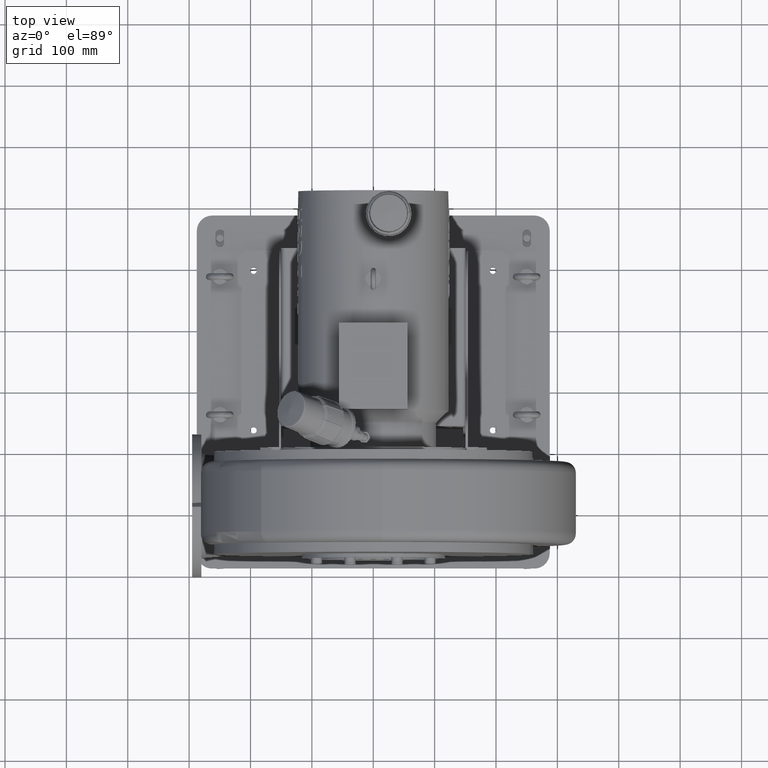
[diagram: clean part render]
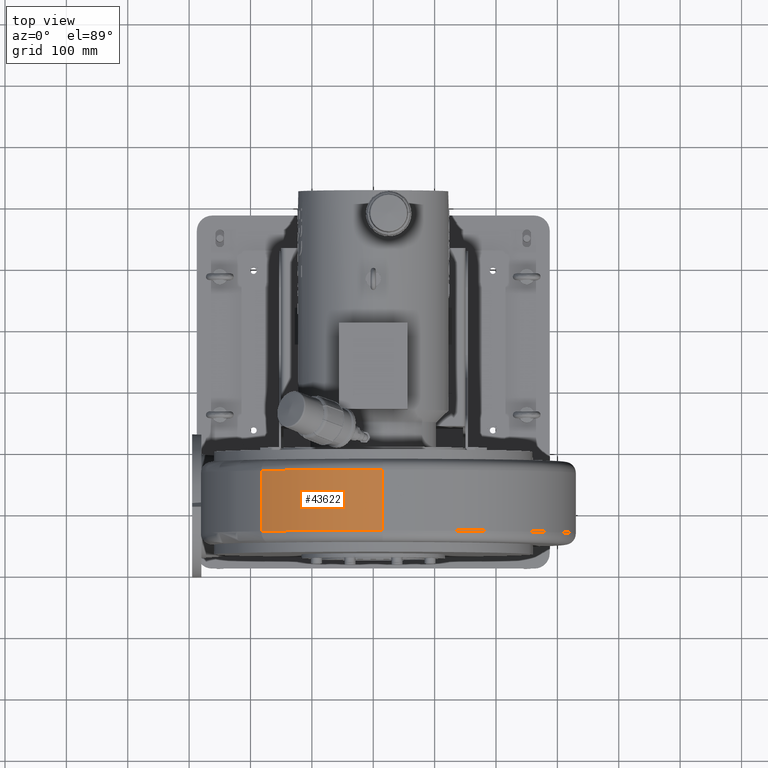
[diagram: same view with one face highlighted and labeled with its STEP entity id]
A machine part, top view. The second image highlights one B-rep face of the part: STEP entity #43622.
In plain terms, the highlighted cylindrical surface (partial cylindrical patch) has radius 285 mm, axis along (-0, -1, -0).
Its self-contained STEP definition (entity closure, byte-faithful):
#42424=CARTESIAN_POINT('',(-182.43618941036615,-237.50000000000281,620.53333333335183));
#42425=VERTEX_POINT('',#42424);
#42433=CARTESIAN_POINT('',(-182.43618941036453,-138.50000000000279,620.53333333335263));
#42434=VERTEX_POINT('',#42433);
#42435=CARTESIAN_POINT('',(-182.43618941036451,-138.50000000000281,620.53333333335274));
#42436=DIRECTION('',(0.0,-1.0,0.0));
#42437=VECTOR('',#42436,99.0);
#42438=LINE('',#42435,#42437);
#42439=EDGE_CURVE('',#42434,#42425,#42438,.T.);
#43499=CARTESIAN_POINT('',(15.00000000000866,-138.50000000000679,700.00000000001921));
#43500=VERTEX_POINT('',#43499);
#43541=CARTESIAN_POINT('',(15.000000000008825,-138.50000000000426,415.00000000001921));
#43542=DIRECTION('',(-7.662253E-016,1.0,1.903699E-015));
#43543=DIRECTION('',(-0.37338345528205,-2.052114E-015,0.927677096473572));
#43544=AXIS2_PLACEMENT_3D('',#43541,#43542,#43543);
#43545=CIRCLE('',#43544,285.0);
#43546=EDGE_CURVE('',#42434,#43500,#43545,.T.);
#43586=CARTESIAN_POINT('',(15.000000000007008,-237.50000000000682,700.0000000000183));
#43587=VERTEX_POINT('',#43586);
#43588=CARTESIAN_POINT('',(15.000000000008662,-138.50000000000679,700.00000000001921));
#43589=DIRECTION('',(0.0,-1.0,0.0));
#43590=VECTOR('',#43589,99.0);
#43591=LINE('',#43588,#43590);
#43592=EDGE_CURVE('',#43500,#43587,#43591,.T.);
#43605=CARTESIAN_POINT('',(15.000000000007997,-188.00000000000426,415.00000000001876));
#43606=DIRECTION('',(-1.670886E-014,-1.0,-8.937295E-015));
#43607=DIRECTION('',(0.0,0.0,1.0));
#43608=AXIS2_PLACEMENT_3D('',#43605,#43606,#43607);
#43609=CYLINDRICAL_SURFACE('',#43608,285.0);
#43610=ORIENTED_EDGE('',*,*,#43546,.F.);
#43611=ORIENTED_EDGE('',*,*,#42439,.T.);
#43612=CARTESIAN_POINT('',(15.000000000007173,-237.50000000000426,415.0000000000183));
#43613=DIRECTION('',(7.662253E-016,-1.0,-1.903699E-015));
#43614=DIRECTION('',(-0.37338345528205,-2.052114E-015,0.927677096473572));
#43615=AXIS2_PLACEMENT_3D('',#43612,#43613,#43614);
#43616=CIRCLE('',#43615,285.0);
#43617=EDGE_CURVE('',#43587,#42425,#43616,.T.);
#43618=ORIENTED_EDGE('',*,*,#43617,.F.);
#43619=ORIENTED_EDGE('',*,*,#43592,.F.);
#43620=EDGE_LOOP('',(#43610,#43611,#43618,#43619));
#43621=FACE_OUTER_BOUND('',#43620,.T.);
#43622=ADVANCED_FACE('',(#43621),#43609,.T.);